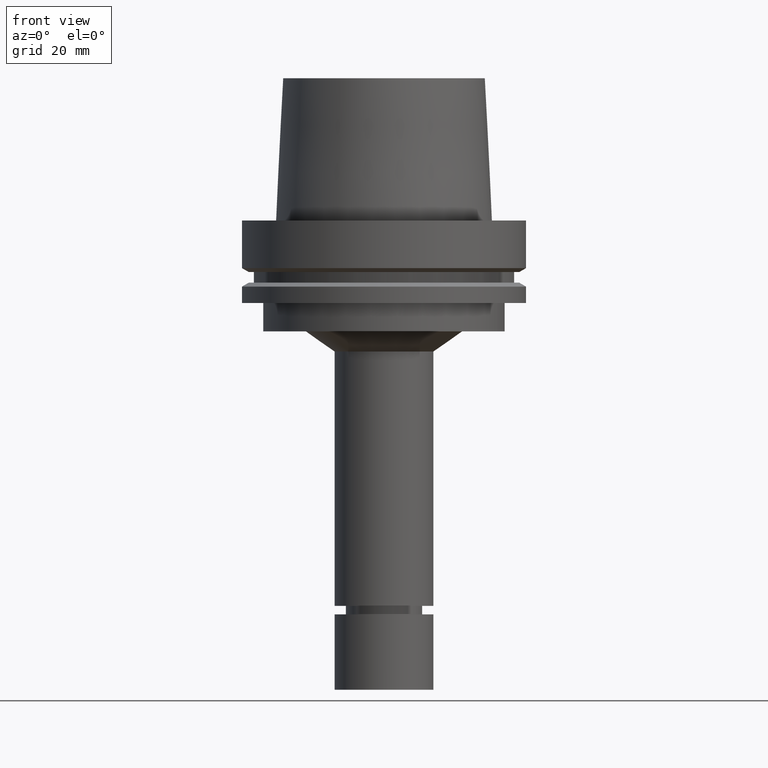
[diagram: clean part render]
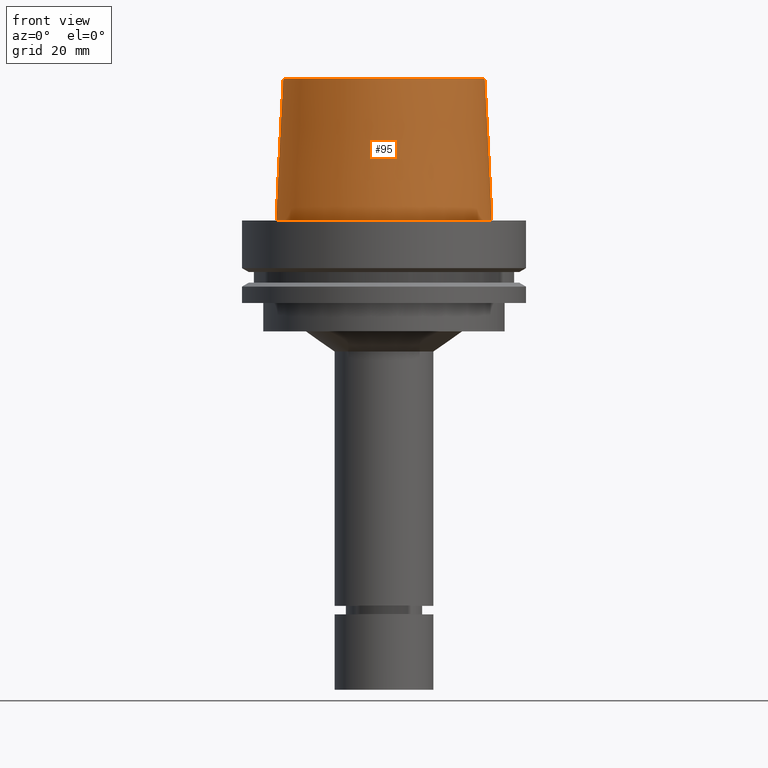
[diagram: same view with one face highlighted and labeled with its STEP entity id]
A machine part, front view. The second image highlights one B-rep face of the part: STEP entity #95.
In plain terms, the highlighted conical surface has half-angle 2.862 deg.
Its self-contained STEP definition (entity closure, byte-faithful):
#95=ADVANCED_FACE('Unnamed[1]',(#244,#245),#246,.T.);
#127=EDGE_CURVE('Unnamed[1]',#292,#292,#293,.T.);
#190=EDGE_CURVE('Unnamed[1]',#390,#390,#391,.T.);
#244=FACE_BOUND('',#449,.T.);
#245=FACE_BOUND('',#450,.T.);
#246=CONICAL_SURFACE('',#451,36.7500000007484,0.0499583956894843);
#292=VERTEX_POINT('',#508);
#293=CIRCLE('',#509,35.5000000015618);
#390=VERTEX_POINT('',#630);
#391=CIRCLE('',#631,37.9999999999349);
#449=EDGE_LOOP('',(#680));
#450=EDGE_LOOP('',(#681));
#451=AXIS2_PLACEMENT_3D('',#682,#683,#684);
#508=CARTESIAN_POINT('',(-3.06161699786838E-015,35.5000000015618,50.0));
#509=AXIS2_PLACEMENT_3D('',#729,#730,#731);
#630=CARTESIAN_POINT('',(-3.3636548776863E-032,37.9999999999349,-2.44634216324803E-015));
#631=AXIS2_PLACEMENT_3D('',#842,#843,#844);
#680=ORIENTED_EDGE('',*,*,#190,.F.);
#681=ORIENTED_EDGE('',*,*,#127,.T.);
#682=CARTESIAN_POINT('',(-1.53080849893419E-015,-3.06161699786838E-015,25.0));
#683=DIRECTION('',(6.12323399573676E-017,1.22464679914735E-016,-1.0));
#684=DIRECTION('',(-1.23259516440783E-032,1.0,1.22464679914735E-016));
#729=CARTESIAN_POINT('',(-3.06161699786838E-015,-6.12323399573676E-015,50.0));
#730=DIRECTION('',(6.12323399573677E-017,1.22464679914735E-016,-1.0));
#731=DIRECTION('',(-1.23259516440783E-032,1.0,1.22464679914735E-016));
#842=CARTESIAN_POINT('',(0.0,0.0,0.0));
#843=DIRECTION('',(6.12323399573677E-017,1.22464679914735E-016,-1.0));
#844=DIRECTION('',(-1.23259516440783E-032,1.0,1.22464679914735E-016));